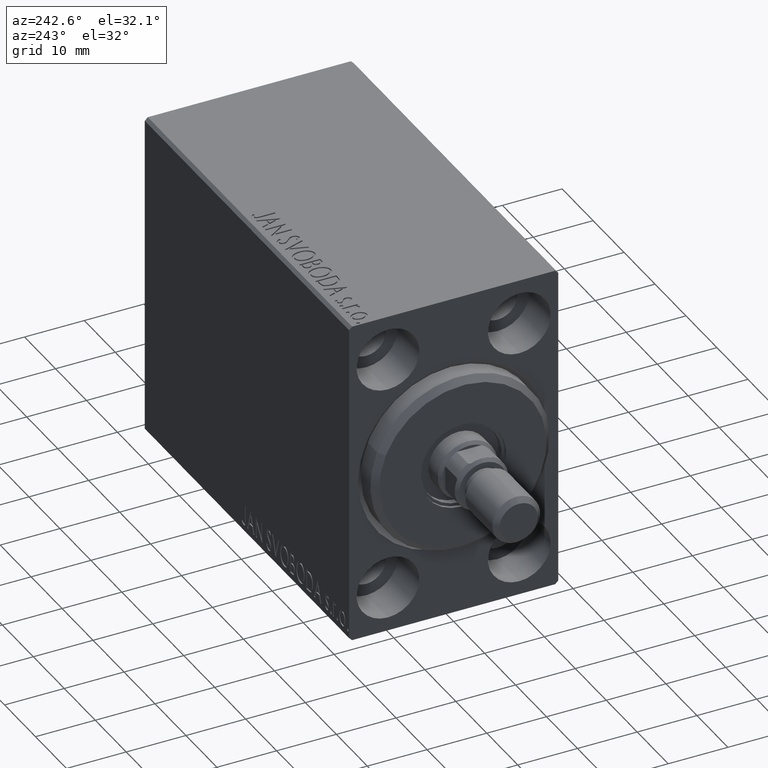
[diagram: clean part render]
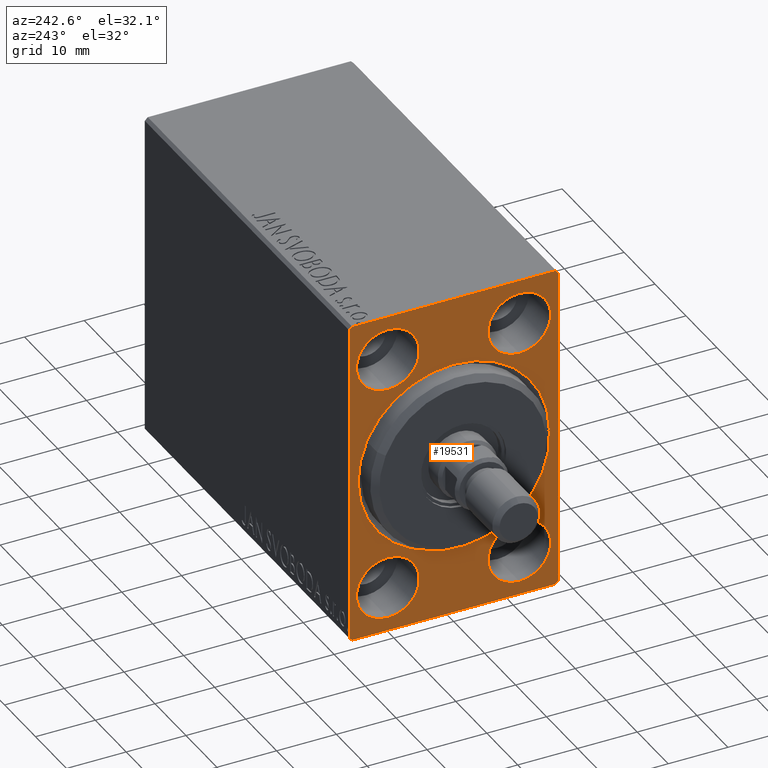
[diagram: same view with one face highlighted and labeled with its STEP entity id]
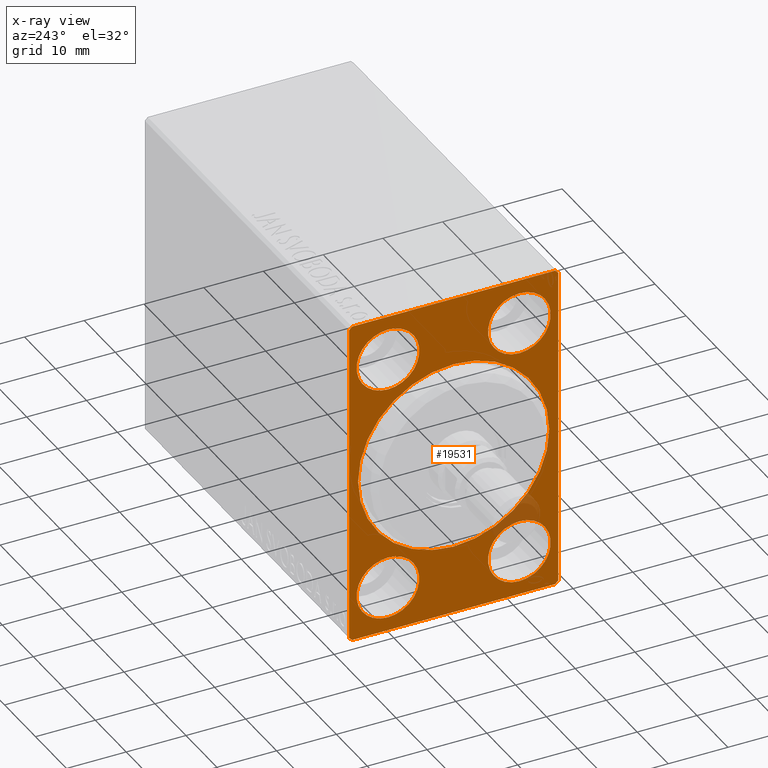
[diagram: x-ray of the same camera — body ghosted, the highlighted face saturated]
A machine part, auxiliary view. The second image highlights one B-rep face of the part: STEP entity #19531.
The next image is the same camera in x-ray: the body ghosted, the highlighted face saturated — about 3% of this face is hidden behind the body in this view.
In plain terms, the highlighted planar face has unit normal (1, 0, 0).
Its self-contained STEP definition (entity closure, byte-faithful):
#13 = VERTEX_POINT ( 'NONE', #3984 ) ;
#17 = CARTESIAN_POINT ( 'NONE',  ( 0.000000000000000000, -11.00000000000000355, 14.75000000000000000 ) ) ;
#176 = CARTESIAN_POINT ( 'NONE',  ( 0.000000000000000000, 0.000000000000000000, 0.000000000000000000 ) ) ;
#608 = VERTEX_POINT ( 'NONE', #17 ) ;
#709 = DIRECTION ( 'NONE',  ( 0.000000000000000000, 1.000000000000000000, 0.000000000000000000 ) ) ;
#1077 = DIRECTION ( 'NONE',  ( 0.000000000000000000, -1.261617073437677752E-16, 1.000000000000000000 ) ) ;
#1698 = ORIENTED_EDGE ( 'NONE', *, *, #14807, .T. ) ;
#2008 = VERTEX_POINT ( 'NONE', #26365 ) ;
#3046 = DIRECTION ( 'NONE',  ( 0.000000000000000000, 0.000000000000000000, 1.000000000000000000 ) ) ;
#3261 = DIRECTION ( 'NONE',  ( -0.000000000000000000, 0.7071067811865378028, -0.7071067811865573427 ) ) ;
#3544 = FACE_OUTER_BOUND ( 'NONE', #5709, .T. ) ;
#3811 = CARTESIAN_POINT ( 'NONE',  ( 0.000000000000000000, 11.00000000000000355, -14.75000000000000000 ) ) ;
#3879 = VERTEX_POINT ( 'NONE', #11304 ) ;
#3984 = CARTESIAN_POINT ( 'NONE',  ( 0.000000000000000000, 17.50000000000000711, -26.99999999999998934 ) ) ;
#4389 = VECTOR ( 'NONE', #3261, 1000.000000000000000 ) ;
#4897 = CARTESIAN_POINT ( 'NONE',  ( 0.000000000000000000, -17.00000000000000000, 27.49999999999999645 ) ) ;
#5342 = CARTESIAN_POINT ( 'NONE',  ( 0.000000000000000000, 11.00000000000000355, -20.00000000000000000 ) ) ;
#5386 = VERTEX_POINT ( 'NONE', #38765 ) ;
#5682 = ORIENTED_EDGE ( 'NONE', *, *, #18849, .F. ) ;
#5709 = EDGE_LOOP ( 'NONE', ( #22815, #7277, #11703, #40680, #8907, #1698, #42244, #14074 ) ) ;
#6323 = ORIENTED_EDGE ( 'NONE', *, *, #11870, .F. ) ;
#6324 = DIRECTION ( 'NONE',  ( -1.000000000000000000, 0.000000000000000000, 0.000000000000000000 ) ) ;
#7013 = EDGE_CURVE ( 'NONE', #43598, #2008, #31428, .T. ) ;
#7057 = ORIENTED_EDGE ( 'NONE', *, *, #9299, .F. ) ;
#7184 = DIRECTION ( 'NONE',  ( -1.000000000000000000, 0.000000000000000000, 0.000000000000000000 ) ) ;
#7277 = ORIENTED_EDGE ( 'NONE', *, *, #30245, .T. ) ;
#7333 = EDGE_CURVE ( 'NONE', #30202, #39165, #20711, .T. ) ;
#7358 = CIRCLE ( 'NONE', #41002, 5.250000000000000888 ) ;
#7443 = CARTESIAN_POINT ( 'NONE',  ( 0.000000000000000000, -11.00000000000000355, -20.00000000000000000 ) ) ;
#7634 = DIRECTION ( 'NONE',  ( -1.000000000000000000, 0.000000000000000000, 0.000000000000000000 ) ) ;
#8614 = LINE ( 'NONE', #33036, #31742 ) ;
#8907 = ORIENTED_EDGE ( 'NONE', *, *, #13179, .F. ) ;
#8952 = DIRECTION ( 'NONE',  ( 0.000000000000000000, 0.000000000000000000, -1.000000000000000000 ) ) ;
#8957 = CARTESIAN_POINT ( 'NONE',  ( 0.000000000000000000, -17.00000000000000000, -27.50000000000000355 ) ) ;
#9299 = EDGE_CURVE ( 'NONE', #41550, #3879, #24987, .T. ) ;
#9517 = DIRECTION ( 'NONE',  ( 0.000000000000000000, -1.000000000000000000, -1.982541115402065110E-16 ) ) ;
#9547 = CARTESIAN_POINT ( 'NONE',  ( 0.000000000000000000, -11.00000000000000355, 20.00000000000000000 ) ) ;
#9942 = VERTEX_POINT ( 'NONE', #27694 ) ;
#9992 = LINE ( 'NONE', #20973, #4389 ) ;
#10407 = VECTOR ( 'NONE', #10974, 1000.000000000000000 ) ;
#10446 = CARTESIAN_POINT ( 'NONE',  ( 0.000000000000000000, 17.50000000000000711, -26.99999999999998934 ) ) ;
#10593 = CARTESIAN_POINT ( 'NONE',  ( 0.000000000000000000, -17.50000000000000000, -27.50000000000000355 ) ) ;
#10859 = CIRCLE ( 'NONE', #15153, 5.250000000000000888 ) ;
#10974 = DIRECTION ( 'NONE',  ( -0.000000000000000000, 0.7071067811865573427, 0.7071067811865378028 ) ) ;
#11304 = CARTESIAN_POINT ( 'NONE',  ( 0.000000000000000000, -11.00000000000000355, -25.25000000000000000 ) ) ;
#11323 = AXIS2_PLACEMENT_3D ( 'NONE', #40396, #6324, #20007 ) ;
#11338 = CARTESIAN_POINT ( 'NONE',  ( 0.000000000000000000, 0.000000000000000000, 0.000000000000000000 ) ) ;
#11684 = ORIENTED_EDGE ( 'NONE', *, *, #33690, .F. ) ;
#11703 = ORIENTED_EDGE ( 'NONE', *, *, #27279, .F. ) ;
#11870 = EDGE_CURVE ( 'NONE', #26830, #21077, #15735, .T. ) ;
#11892 = VECTOR ( 'NONE', #709, 1000.000000000000000 ) ;
#12171 = EDGE_LOOP ( 'NONE', ( #5682, #15976 ) ) ;
#12237 = CIRCLE ( 'NONE', #37305, 5.250000000000000888 ) ;
#12444 = CARTESIAN_POINT ( 'NONE',  ( 0.000000000000000000, -11.00000000000000355, 20.00000000000000000 ) ) ;
#12583 = CIRCLE ( 'NONE', #18334, 5.250000000000000888 ) ;
#12758 = CARTESIAN_POINT ( 'NONE',  ( 0.000000000000000000, 17.00000000000001421, 27.50000000000000355 ) ) ;
#12870 = CARTESIAN_POINT ( 'NONE',  ( 0.000000000000000000, 17.50000000000000000, 27.50000000000000355 ) ) ;
#13179 = EDGE_CURVE ( 'NONE', #13, #5386, #29074, .T. ) ;
#13857 = DIRECTION ( 'NONE',  ( 0.000000000000000000, 0.000000000000000000, -1.000000000000000000 ) ) ;
#14022 = CARTESIAN_POINT ( 'NONE',  ( 0.000000000000000000, -17.50000000000000000, -27.00000000000000355 ) ) ;
#14074 = ORIENTED_EDGE ( 'NONE', *, *, #31463, .T. ) ;
#14807 = EDGE_CURVE ( 'NONE', #13, #9942, #40925, .T. ) ;
#14862 = EDGE_CURVE ( 'NONE', #30533, #5386, #9992, .T. ) ;
#15153 = AXIS2_PLACEMENT_3D ( 'NONE', #7443, #24490, #42403 ) ;
#15653 = DIRECTION ( 'NONE',  ( 0.000000000000000000, 0.000000000000000000, 1.000000000000000000 ) ) ;
#15735 = CIRCLE ( 'NONE', #40811, 5.250000000000000888 ) ;
#15800 = VERTEX_POINT ( 'NONE', #39097 ) ;
#15976 = ORIENTED_EDGE ( 'NONE', *, *, #21984, .F. ) ;
#16002 = DIRECTION ( 'NONE',  ( 0.000000000000000000, 0.000000000000000000, 1.000000000000000000 ) ) ;
#16352 = LINE ( 'NONE', #8957, #41956 ) ;
#16602 = CARTESIAN_POINT ( 'NONE',  ( 0.000000000000000000, -11.00000000000000355, -20.00000000000000000 ) ) ;
#16941 = DIRECTION ( 'NONE',  ( 0.000000000000000000, 0.000000000000000000, 1.000000000000000000 ) ) ;
#17230 = FACE_BOUND ( 'NONE', #25184, .T. ) ;
#17232 = CARTESIAN_POINT ( 'NONE',  ( 0.000000000000000000, 11.00000000000000355, 25.25000000000000000 ) ) ;
#17984 = LINE ( 'NONE', #10593, #11892 ) ;
#18054 = ORIENTED_EDGE ( 'NONE', *, *, #30484, .T. ) ;
#18334 = AXIS2_PLACEMENT_3D ( 'NONE', #5342, #35625, #15653 ) ;
#18365 = VERTEX_POINT ( 'NONE', #4897 ) ;
#18849 = EDGE_CURVE ( 'NONE', #15800, #608, #12237, .T. ) ;
#19018 = VERTEX_POINT ( 'NONE', #14022 ) ;
#19431 = ORIENTED_EDGE ( 'NONE', *, *, #42036, .F. ) ;
#19531 = ADVANCED_FACE ( 'NONE', ( #40984, #23941, #24168, #37611, #17230, #3544 ), #30890, .F. ) ;
#19696 = CIRCLE ( 'NONE', #27585, 15.99999999999997335 ) ;
#19755 = VERTEX_POINT ( 'NONE', #32421 ) ;
#19947 = DIRECTION ( 'NONE',  ( -0.000000000000000000, -0.7071067811865474617, 0.7071067811865474617 ) ) ;
#20007 = DIRECTION ( 'NONE',  ( 0.000000000000000000, 0.000000000000000000, 1.000000000000000000 ) ) ;
#20530 = EDGE_CURVE ( 'NONE', #3879, #41550, #10859, .T. ) ;
#20711 = CIRCLE ( 'NONE', #23550, 5.250000000000000888 ) ;
#20973 = CARTESIAN_POINT ( 'NONE',  ( 0.000000000000000000, 17.00000000000001421, 27.50000000000000355 ) ) ;
#21060 = CARTESIAN_POINT ( 'NONE',  ( 0.000000000000000000, -17.50000000000000000, 27.00000000000001066 ) ) ;
#21077 = VERTEX_POINT ( 'NONE', #17232 ) ;
#21313 = DIRECTION ( 'NONE',  ( 0.000000000000000000, 0.000000000000000000, 1.000000000000000000 ) ) ;
#21984 = EDGE_CURVE ( 'NONE', #608, #15800, #7358, .T. ) ;
#22044 = CIRCLE ( 'NONE', #11323, 5.250000000000000888 ) ;
#22365 = CARTESIAN_POINT ( 'NONE',  ( 0.000000000000000000, 17.50000000000000711, -27.50000000000000355 ) ) ;
#22733 = DIRECTION ( 'NONE',  ( -1.000000000000000000, 0.000000000000000000, 0.000000000000000000 ) ) ;
#22815 = ORIENTED_EDGE ( 'NONE', *, *, #25116, .F. ) ;
#22846 = AXIS2_PLACEMENT_3D ( 'NONE', #16602, #7184, #41704 ) ;
#23550 = AXIS2_PLACEMENT_3D ( 'NONE', #33485, #22733, #16002 ) ;
#23941 = FACE_BOUND ( 'NONE', #38403, .T. ) ;
#24168 = FACE_BOUND ( 'NONE', #12171, .T. ) ;
#24329 = CARTESIAN_POINT ( 'NONE',  ( 0.000000000000000000, -17.50000000000000000, 27.00000000000001066 ) ) ;
#24490 = DIRECTION ( 'NONE',  ( -1.000000000000000000, 0.000000000000000000, 0.000000000000000000 ) ) ;
#24987 = CIRCLE ( 'NONE', #22846, 5.250000000000000888 ) ;
#25066 = CARTESIAN_POINT ( 'NONE',  ( 0.000000000000000000, -11.00000000000000355, -14.75000000000000000 ) ) ;
#25116 = EDGE_CURVE ( 'NONE', #33067, #19018, #8614, .T. ) ;
#25184 = EDGE_LOOP ( 'NONE', ( #7057, #39128 ) ) ;
#26115 = DIRECTION ( 'NONE',  ( -1.000000000000000000, 0.000000000000000000, 0.000000000000000000 ) ) ;
#26365 = CARTESIAN_POINT ( 'NONE',  ( 0.000000000000000000, 0.000000000000000000, 15.99999999999997335 ) ) ;
#26830 = VERTEX_POINT ( 'NONE', #42991 ) ;
#27279 = EDGE_CURVE ( 'NONE', #30533, #18365, #43597, .T. ) ;
#27585 = AXIS2_PLACEMENT_3D ( 'NONE', #29794, #29573, #8952 ) ;
#27694 = CARTESIAN_POINT ( 'NONE',  ( 0.000000000000000000, 16.99999999999999289, -27.50000000000000355 ) ) ;
#28785 = DIRECTION ( 'NONE',  ( 0.000000000000000000, 0.000000000000000000, -1.000000000000000000 ) ) ;
#29074 = LINE ( 'NONE', #22365, #31526 ) ;
#29573 = DIRECTION ( 'NONE',  ( 1.000000000000000000, 0.000000000000000000, 0.000000000000000000 ) ) ;
#29794 = CARTESIAN_POINT ( 'NONE',  ( 0.000000000000000000, 0.000000000000000000, 0.000000000000000000 ) ) ;
#30202 = VERTEX_POINT ( 'NONE', #3811 ) ;
#30245 = EDGE_CURVE ( 'NONE', #33067, #18365, #34080, .T. ) ;
#30484 = EDGE_CURVE ( 'NONE', #2008, #43598, #19696, .T. ) ;
#30533 = VERTEX_POINT ( 'NONE', #12758 ) ;
#30890 = PLANE ( 'NONE',  #33758 ) ;
#31428 = CIRCLE ( 'NONE', #35708, 15.99999999999997335 ) ;
#31463 = EDGE_CURVE ( 'NONE', #19755, #19018, #16352, .T. ) ;
#31526 = VECTOR ( 'NONE', #1077, 1000.000000000000000 ) ;
#31548 = CARTESIAN_POINT ( 'NONE',  ( 0.000000000000000000, 1.959434878635761582E-15, -15.99999999999997335 ) ) ;
#31742 = VECTOR ( 'NONE', #28785, 1000.000000000000000 ) ;
#32421 = CARTESIAN_POINT ( 'NONE',  ( 0.000000000000000000, -17.00000000000000000, -27.50000000000000355 ) ) ;
#32520 = EDGE_CURVE ( 'NONE', #19755, #9942, #17984, .T. ) ;
#33036 = CARTESIAN_POINT ( 'NONE',  ( 0.000000000000000000, -17.50000000000000000, 27.49999999999999645 ) ) ;
#33067 = VERTEX_POINT ( 'NONE', #24329 ) ;
#33485 = CARTESIAN_POINT ( 'NONE',  ( 0.000000000000000000, 11.00000000000000355, -20.00000000000000000 ) ) ;
#33690 = EDGE_CURVE ( 'NONE', #39165, #30202, #12583, .T. ) ;
#33758 = AXIS2_PLACEMENT_3D ( 'NONE', #176, #37835, #13857 ) ;
#34080 = LINE ( 'NONE', #21060, #10407 ) ;
#34471 = ORIENTED_EDGE ( 'NONE', *, *, #7013, .T. ) ;
#34883 = DIRECTION ( 'NONE',  ( 0.000000000000000000, 0.000000000000000000, -1.000000000000000000 ) ) ;
#35625 = DIRECTION ( 'NONE',  ( -1.000000000000000000, 0.000000000000000000, 0.000000000000000000 ) ) ;
#35708 = AXIS2_PLACEMENT_3D ( 'NONE', #11338, #38464, #34883 ) ;
#35730 = EDGE_LOOP ( 'NONE', ( #19431, #6323 ) ) ;
#35798 = CARTESIAN_POINT ( 'NONE',  ( 0.000000000000000000, 11.00000000000000355, -25.25000000000000000 ) ) ;
#36234 = EDGE_LOOP ( 'NONE', ( #18054, #34471 ) ) ;
#37305 = AXIS2_PLACEMENT_3D ( 'NONE', #12444, #26115, #16941 ) ;
#37555 = DIRECTION ( 'NONE',  ( 0.000000000000000000, -0.7071067811865474617, -0.7071067811865474617 ) ) ;
#37611 = FACE_BOUND ( 'NONE', #35730, .T. ) ;
#37835 = DIRECTION ( 'NONE',  ( 1.000000000000000000, 0.000000000000000000, 0.000000000000000000 ) ) ;
#38081 = ORIENTED_EDGE ( 'NONE', *, *, #7333, .F. ) ;
#38344 = CARTESIAN_POINT ( 'NONE',  ( 0.000000000000000000, 11.00000000000000355, 20.00000000000000000 ) ) ;
#38403 = EDGE_LOOP ( 'NONE', ( #38081, #11684 ) ) ;
#38464 = DIRECTION ( 'NONE',  ( 1.000000000000000000, 0.000000000000000000, 0.000000000000000000 ) ) ;
#38765 = CARTESIAN_POINT ( 'NONE',  ( 0.000000000000000000, 17.50000000000000000, 27.00000000000000355 ) ) ;
#39097 = CARTESIAN_POINT ( 'NONE',  ( 0.000000000000000000, -11.00000000000000355, 25.25000000000000000 ) ) ;
#39128 = ORIENTED_EDGE ( 'NONE', *, *, #20530, .F. ) ;
#39165 = VERTEX_POINT ( 'NONE', #35798 ) ;
#40396 = CARTESIAN_POINT ( 'NONE',  ( 0.000000000000000000, 11.00000000000000355, 20.00000000000000000 ) ) ;
#40680 = ORIENTED_EDGE ( 'NONE', *, *, #14862, .T. ) ;
#40811 = AXIS2_PLACEMENT_3D ( 'NONE', #38344, #7634, #21313 ) ;
#40925 = LINE ( 'NONE', #10446, #43778 ) ;
#40984 = FACE_BOUND ( 'NONE', #36234, .T. ) ;
#41002 = AXIS2_PLACEMENT_3D ( 'NONE', #9547, #44304, #3046 ) ;
#41550 = VERTEX_POINT ( 'NONE', #25066 ) ;
#41704 = DIRECTION ( 'NONE',  ( 0.000000000000000000, 0.000000000000000000, 1.000000000000000000 ) ) ;
#41956 = VECTOR ( 'NONE', #19947, 1000.000000000000114 ) ;
#42036 = EDGE_CURVE ( 'NONE', #21077, #26830, #22044, .T. ) ;
#42244 = ORIENTED_EDGE ( 'NONE', *, *, #32520, .F. ) ;
#42403 = DIRECTION ( 'NONE',  ( 0.000000000000000000, 0.000000000000000000, 1.000000000000000000 ) ) ;
#42551 = VECTOR ( 'NONE', #9517, 1000.000000000000000 ) ;
#42991 = CARTESIAN_POINT ( 'NONE',  ( 0.000000000000000000, 11.00000000000000355, 14.75000000000000000 ) ) ;
#43597 = LINE ( 'NONE', #12870, #42551 ) ;
#43598 = VERTEX_POINT ( 'NONE', #31548 ) ;
#43778 = VECTOR ( 'NONE', #37555, 1000.000000000000114 ) ;
#44304 = DIRECTION ( 'NONE',  ( -1.000000000000000000, 0.000000000000000000, 0.000000000000000000 ) ) ;